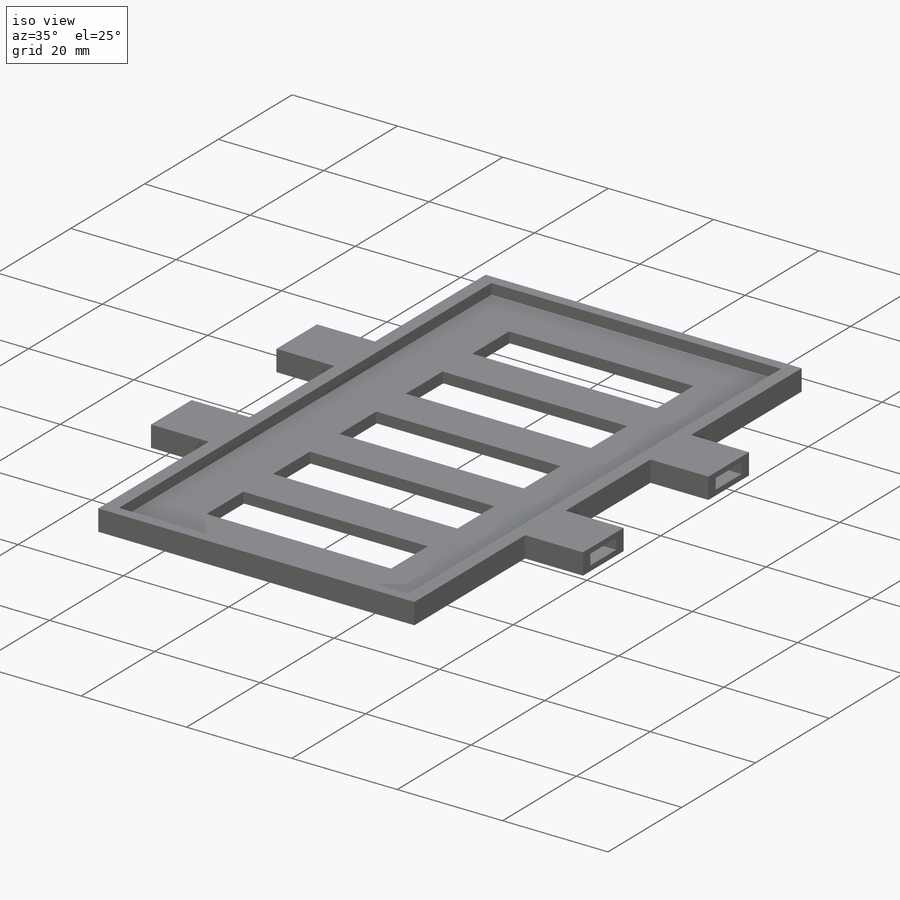
[diagram: iso view]
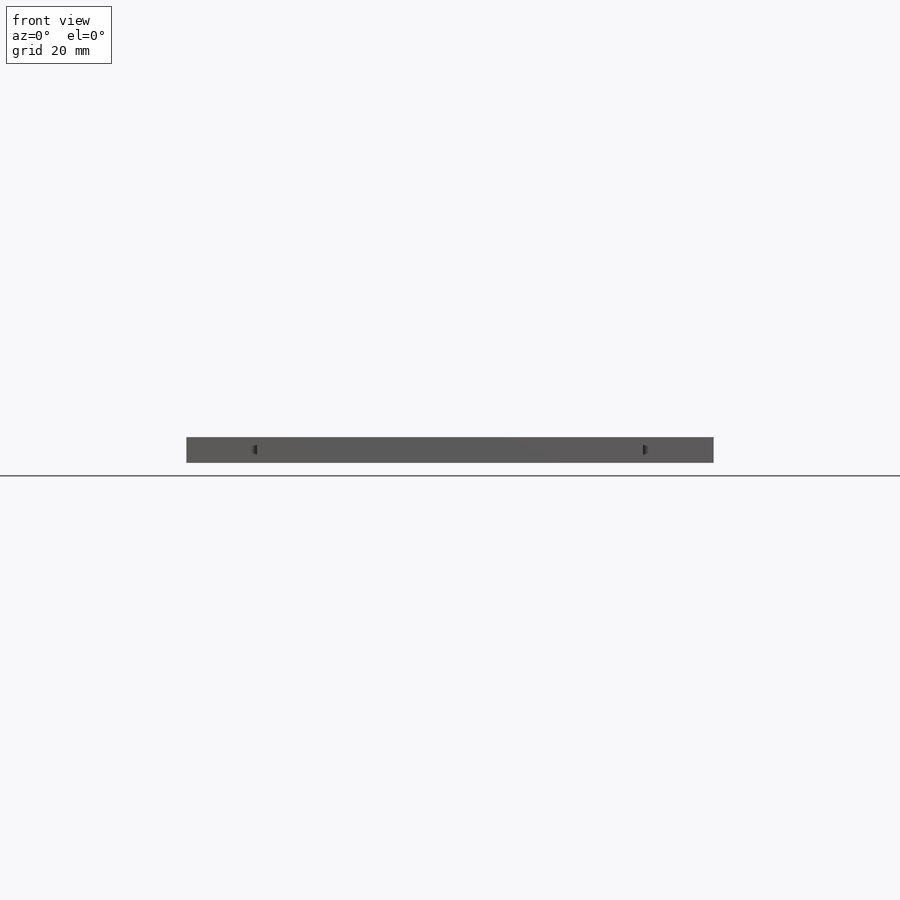
[diagram: front view]
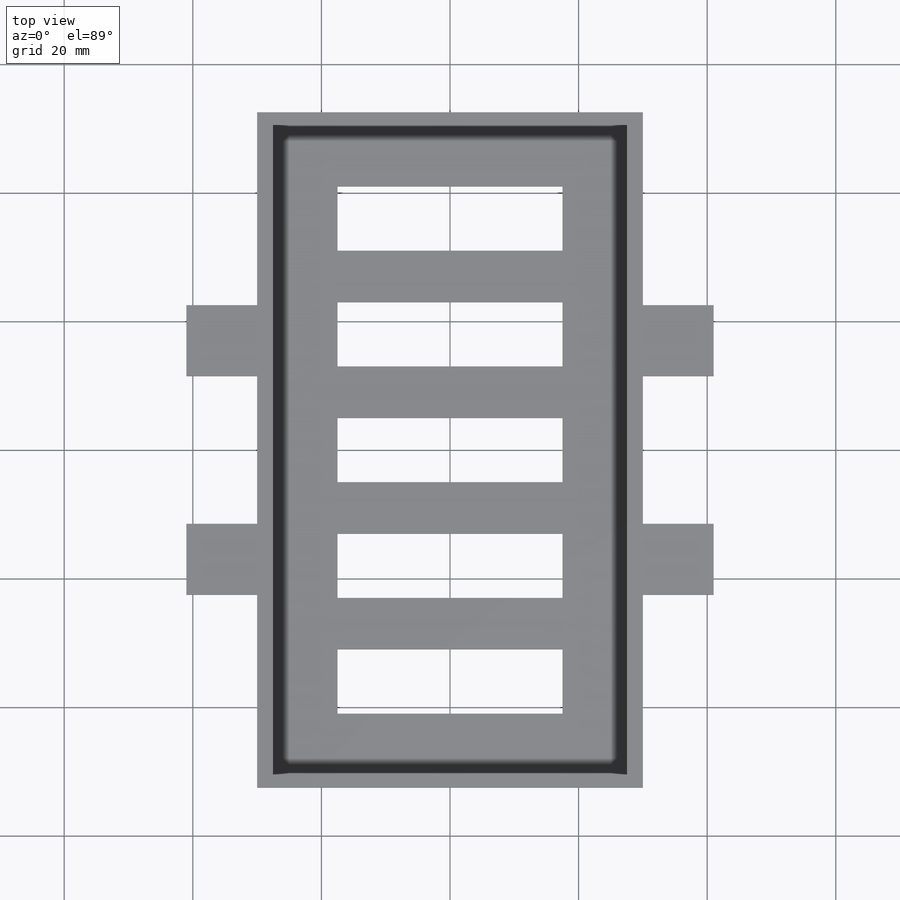
[diagram: top view]
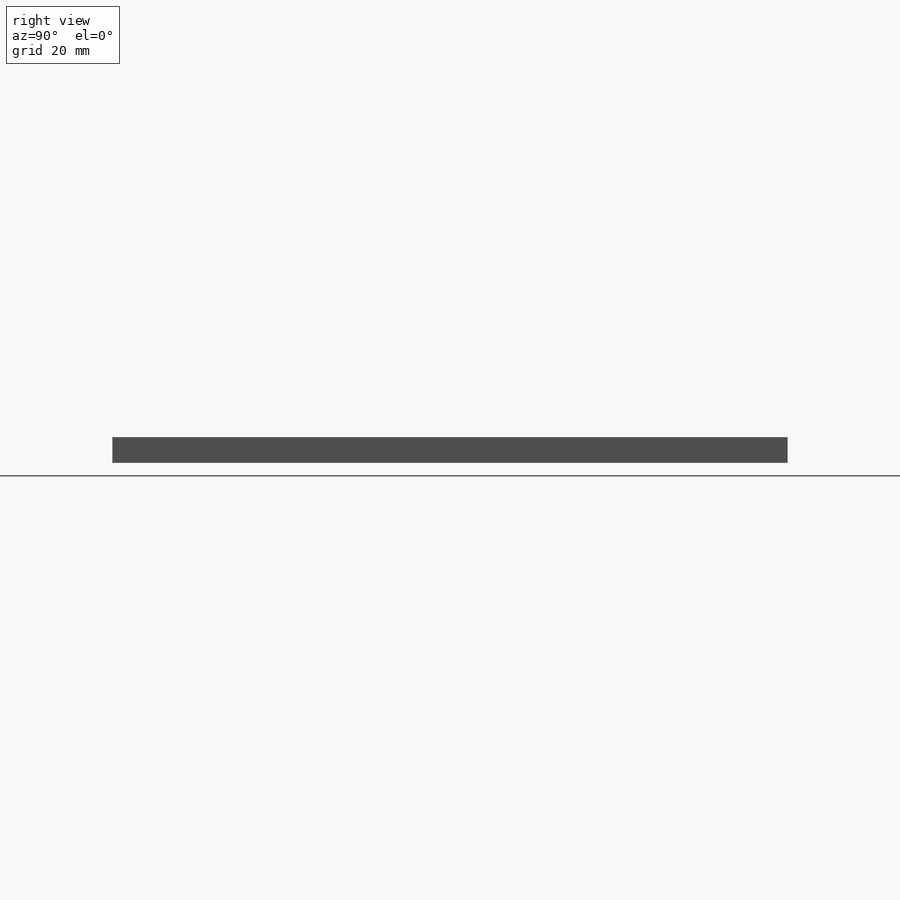
[diagram: right view]
SOLIDWORKS PART (.sldprt)
format: sldprt  version: not decoded by parser v0  size: 308,224 bytes
history: native  units: mm
features: sketch x8, cut_extrude x6, plane x3, material x1, extrude x1 (+9 scaffold rows collapsed)
feature tree (28):
  scaffold x9  (default folders/planes/origin — collapsed)
  material  "Material <sin especificar>"
  plane  "Alzado"
  plane  "Planta"
  plane  "Vista lateral"
  sketch  "Croquis1"  dims[c1.D6=3.0mm c1.D1=65.0mm c1.D2=60.0mm c1.D3=11.0mm c1.D4=5.0mm c1.D5=30.0mm c2.D6=7.5mm c2.D7=4.5mm c2.D4=2.0mm c2.D3=11.0mm c3.D4=11.0mm c3.D1=23.0mm]
  extrude  "Saliente-Extruir1"  Depth=4mm
  sketch  "Croquis2"  dims[c1.D1=60.0mm c1.D2=55.0mm c2.D1=2.0mm]
  cut_extrude  "Cortar-Extruir1"  Depth=2mm
  sketch  "Croquis4"  dims[D1=7.0mm D2=2.0mm]
  cut_extrude  "Cortar-Extruir2"  Depth=9mm
  sketch  "Croquis6"  dims[D1=7.0mm D2=2.0mm]
  cut_extrude  "Cortar-Extruir3"  Depth=9mm
  sketch  "Croquis7"  dims[c1.D1=7.0mm c1.D2=~1.699735mm c2.D2=90.0deg c3.D2=2.0mm]
  cut_extrude  "Cortar-Extruir4"  Depth=9mm
  sketch  "Croquis8"  dims[D1=7.0mm D2=2.0mm]
  cut_extrude  "Cortar-Extruir5"  Depth=9mm
  sketch  "Croquis9"  dims[c1.D1=120.0mm c1.D2=200.0mm c1.D3=~117.64513mm c2.D3=90.0deg c2.D4=~266.505721mm c3.D4=90.0deg c3.D5=~192.873742mm c4.D5=90.0deg c4.D6=~119.605618mm c5.D6=90.0deg c6.D6=~53.398853mm c6.D7=50.0mm c7.D6=60.0deg]
  sketch  "Croquis10"  dims[D1=10.0mm D2=8.0mm D3=35.0mm]
  cut_extrude  "Cortar-Extruir6"  [1 undecoded]
decode coverage: 14 of 15 modeling features carry decoded parameters
note: ~ marks probable driven/reference dimensions
note: 1 parameter value undecoded
note: suppression state not decoded; provenance and decode notes live in map.json
